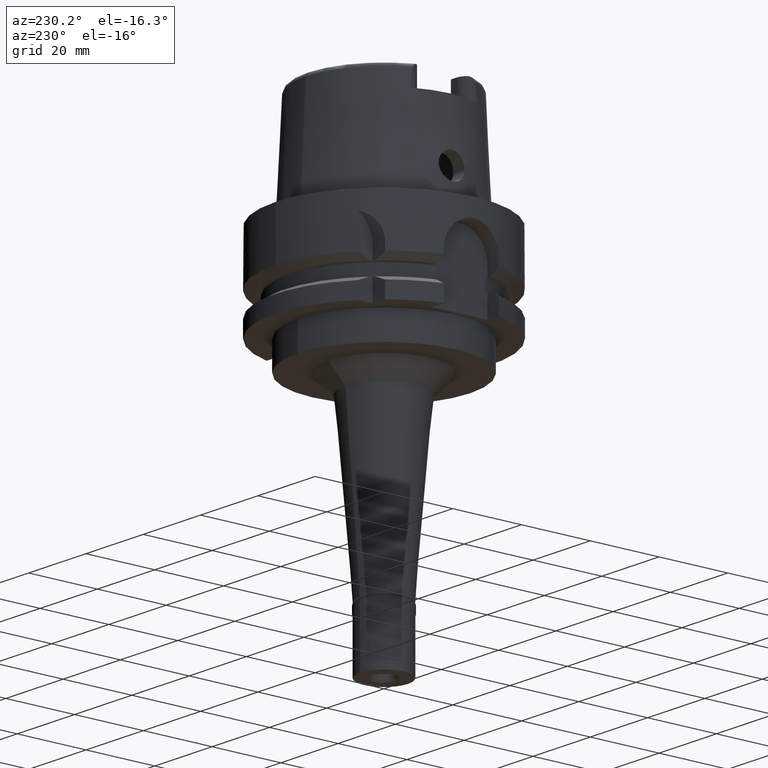
[diagram: clean part render]
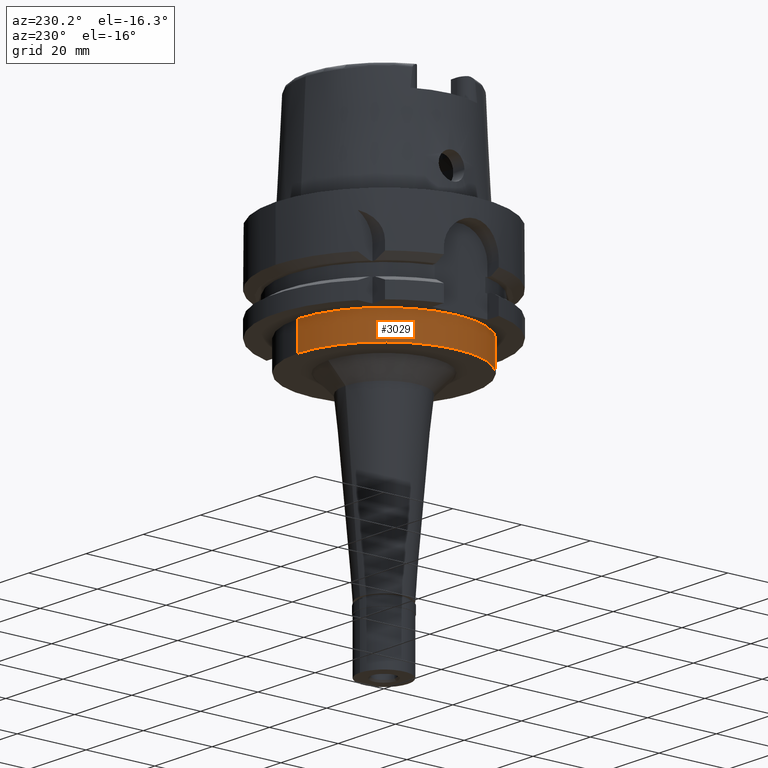
[diagram: same view with one face highlighted and labeled with its STEP entity id]
A machine part, auxiliary view. The second image highlights one B-rep face of the part: STEP entity #3029.
In plain terms, the highlighted cylindrical surface (partial cylindrical patch) has radius 25 mm, axis along (0, 0, -1).
Its self-contained STEP definition (entity closure, byte-faithful):
#413 = AXIS2_PLACEMENT_3D ( 'NONE', #4296, #1875, #5122 ) ;
#523 = DIRECTION ( 'NONE',  ( 0.0000000000000000000, -1.000000000000000000, 0.0000000000000000000 ) ) ;
#597 = DIRECTION ( 'NONE',  ( 0.0000000000000000000, 0.0000000000000000000, -1.000000000000000000 ) ) ;
#949 = VECTOR ( 'NONE', #1786, 1000.000000000000000 ) ;
#1396 = EDGE_CURVE ( 'NONE', #3611, #4498, #3237, .T. ) ;
#1456 = LINE ( 'NONE', #5174, #2938 ) ;
#1770 = VERTEX_POINT ( 'NONE', #4131 ) ;
#1786 = DIRECTION ( 'NONE',  ( 0.0000000000000000000, 0.0000000000000000000, -1.000000000000000000 ) ) ;
#1875 = DIRECTION ( 'NONE',  ( 0.0000000000000000000, 0.0000000000000000000, 1.000000000000000000 ) ) ;
#2065 = FACE_OUTER_BOUND ( 'NONE', #4760, .T. ) ;
#2203 = EDGE_CURVE ( 'NONE', #4498, #1770, #2670, .T. ) ;
#2338 = DIRECTION ( 'NONE',  ( 0.0000000000000000000, 0.0000000000000000000, -1.000000000000000000 ) ) ;
#2670 = LINE ( 'NONE', #3442, #949 ) ;
#2789 = AXIS2_PLACEMENT_3D ( 'NONE', #5418, #3890, #523 ) ;
#2878 = AXIS2_PLACEMENT_3D ( 'NONE', #4371, #2338, #3525 ) ;
#2938 = VECTOR ( 'NONE', #597, 1000.000000000000000 ) ;
#3029 = ADVANCED_FACE ( 'NONE', ( #2065 ), #3746, .T. ) ;
#3118 = EDGE_CURVE ( 'NONE', #1770, #5069, #3405, .T. ) ;
#3171 = CARTESIAN_POINT ( 'NONE',  ( 0.0000000000000000000, -25.00000000000000000, -26.00000000000000000 ) ) ;
#3237 = CIRCLE ( 'NONE', #2878, 25.00000000000000000 ) ;
#3405 = CIRCLE ( 'NONE', #413, 25.00000000000000000 ) ;
#3442 = CARTESIAN_POINT ( 'NONE',  ( 0.0000000000000000000, 25.00000000000000000, -26.00000000000000000 ) ) ;
#3522 = ORIENTED_EDGE ( 'NONE', *, *, #2203, .T. ) ;
#3525 = DIRECTION ( 'NONE',  ( 0.0000000000000000000, -1.000000000000000000, 0.0000000000000000000 ) ) ;
#3611 = VERTEX_POINT ( 'NONE', #3171 ) ;
#3746 = CYLINDRICAL_SURFACE ( 'NONE', #2789, 25.00000000000000000 ) ;
#3890 = DIRECTION ( 'NONE',  ( 0.0000000000000000000, 0.0000000000000000000, -1.000000000000000000 ) ) ;
#3982 = ORIENTED_EDGE ( 'NONE', *, *, #3118, .T. ) ;
#4131 = CARTESIAN_POINT ( 'NONE',  ( 0.0000000000000000000, 25.00000000000000000, -34.00000000000000000 ) ) ;
#4296 = CARTESIAN_POINT ( 'NONE',  ( 0.0000000000000000000, 0.0000000000000000000, -34.00000000000000000 ) ) ;
#4371 = CARTESIAN_POINT ( 'NONE',  ( 0.0000000000000000000, 0.0000000000000000000, -26.00000000000000000 ) ) ;
#4498 = VERTEX_POINT ( 'NONE', #5393 ) ;
#4760 = EDGE_LOOP ( 'NONE', ( #3982, #4777, #5269, #3522 ) ) ;
#4777 = ORIENTED_EDGE ( 'NONE', *, *, #4783, .F. ) ;
#4783 = EDGE_CURVE ( 'NONE', #3611, #5069, #1456, .T. ) ;
#4869 = CARTESIAN_POINT ( 'NONE',  ( 0.0000000000000000000, -25.00000000000000000, -34.00000000000000000 ) ) ;
#5069 = VERTEX_POINT ( 'NONE', #4869 ) ;
#5122 = DIRECTION ( 'NONE',  ( 0.0000000000000000000, 1.000000000000000000, 0.0000000000000000000 ) ) ;
#5174 = CARTESIAN_POINT ( 'NONE',  ( 0.0000000000000000000, -25.00000000000000000, -26.00000000000000000 ) ) ;
#5269 = ORIENTED_EDGE ( 'NONE', *, *, #1396, .T. ) ;
#5393 = CARTESIAN_POINT ( 'NONE',  ( 0.0000000000000000000, 25.00000000000000000, -26.00000000000000000 ) ) ;
#5418 = CARTESIAN_POINT ( 'NONE',  ( 0.0000000000000000000, 0.0000000000000000000, 38.64999999999999858 ) ) ;